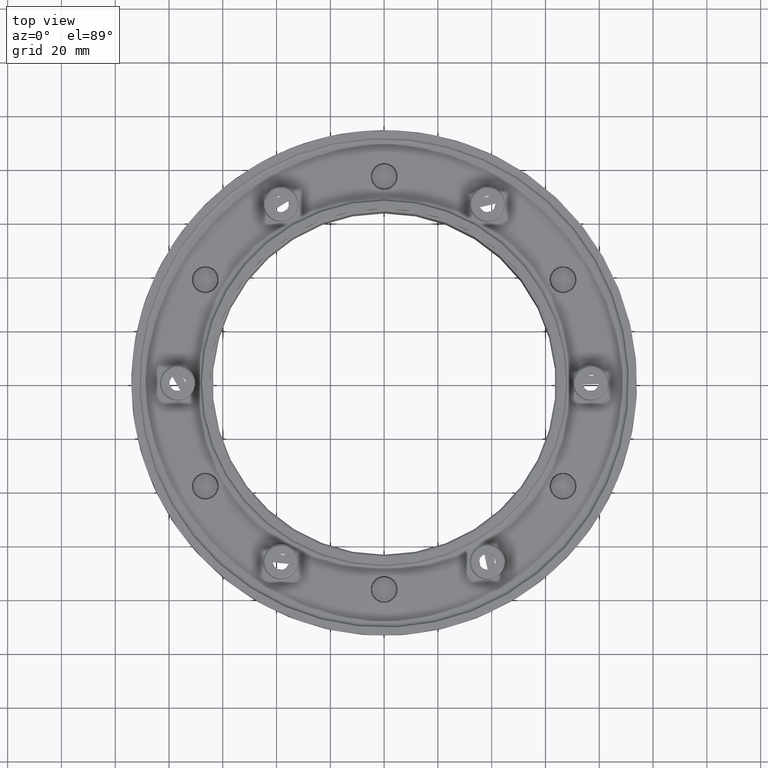
[diagram: clean part render]
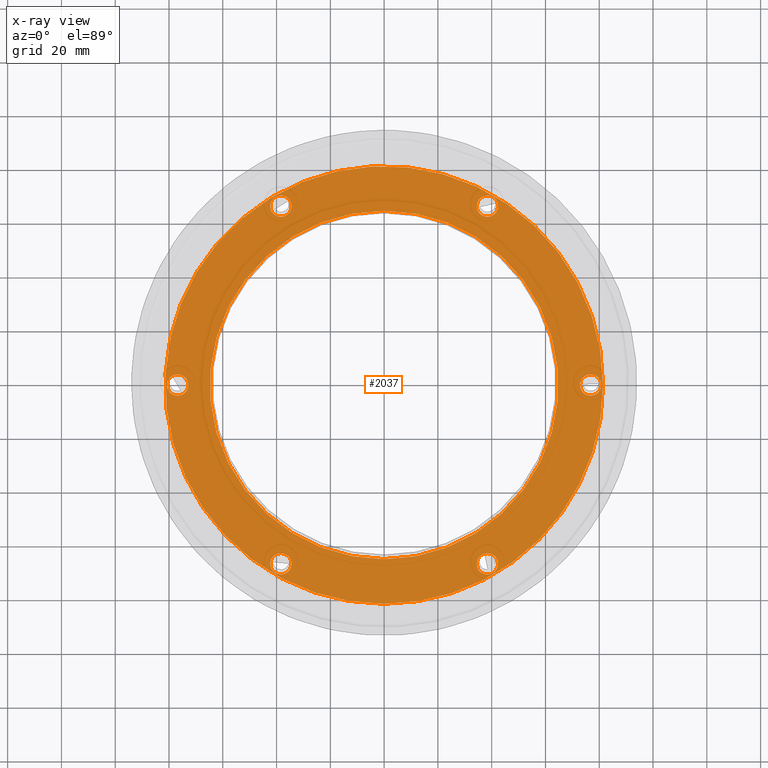
[diagram: x-ray — body ghosted, one internal face saturated and labeled with its STEP entity id]
A machine part, top view, then the same camera in x-ray: the body is ghosted and one INTERNAL B-rep face — a face not visible from any outside direction — is saturated and labeled: STEP entity #2037.
In plain terms, the highlighted planar face has unit normal (-0, 0, -1).
Its self-contained STEP definition (entity closure, byte-faithful):
#74=FACE_BOUND('',#369,.T.);
#75=FACE_BOUND('',#370,.T.);
#76=FACE_BOUND('',#371,.T.);
#77=FACE_BOUND('',#372,.T.);
#78=FACE_BOUND('',#373,.T.);
#79=FACE_BOUND('',#374,.T.);
#80=FACE_BOUND('',#375,.T.);
#141=PLANE('',#2334);
#259=FACE_OUTER_BOUND('',#368,.T.);
#368=EDGE_LOOP('',(#1566,#1567));
#369=EDGE_LOOP('',(#1568));
#370=EDGE_LOOP('',(#1569));
#371=EDGE_LOOP('',(#1570));
#372=EDGE_LOOP('',(#1571));
#373=EDGE_LOOP('',(#1572));
#374=EDGE_LOOP('',(#1573));
#375=EDGE_LOOP('',(#1574,#1575));
#748=CIRCLE('',#2328,81.3873412997318);
#749=CIRCLE('',#2329,81.3873412997318);
#753=CIRCLE('',#2335,3.95);
#754=CIRCLE('',#2336,3.95);
#755=CIRCLE('',#2337,3.95);
#756=CIRCLE('',#2338,3.95);
#757=CIRCLE('',#2339,3.95);
#758=CIRCLE('',#2340,3.95);
#759=CIRCLE('',#2341,64.8);
#760=CIRCLE('',#2342,64.8);
#958=VERTEX_POINT('',#3505);
#959=VERTEX_POINT('',#3507);
#962=VERTEX_POINT('',#3518);
#963=VERTEX_POINT('',#3520);
#964=VERTEX_POINT('',#3522);
#965=VERTEX_POINT('',#3524);
#966=VERTEX_POINT('',#3526);
#967=VERTEX_POINT('',#3528);
#968=VERTEX_POINT('',#3530);
#969=VERTEX_POINT('',#3531);
#1192=EDGE_CURVE('',#958,#959,#748,.T.);
#1193=EDGE_CURVE('',#959,#958,#749,.T.);
#1198=EDGE_CURVE('',#962,#962,#753,.T.);
#1199=EDGE_CURVE('',#963,#963,#754,.T.);
#1200=EDGE_CURVE('',#964,#964,#755,.T.);
#1201=EDGE_CURVE('',#965,#965,#756,.T.);
#1202=EDGE_CURVE('',#966,#966,#757,.T.);
#1203=EDGE_CURVE('',#967,#967,#758,.T.);
#1204=EDGE_CURVE('',#968,#969,#759,.T.);
#1205=EDGE_CURVE('',#969,#968,#760,.T.);
#1566=ORIENTED_EDGE('',*,*,#1193,.F.);
#1567=ORIENTED_EDGE('',*,*,#1192,.F.);
#1568=ORIENTED_EDGE('',*,*,#1198,.T.);
#1569=ORIENTED_EDGE('',*,*,#1199,.T.);
#1570=ORIENTED_EDGE('',*,*,#1200,.T.);
#1571=ORIENTED_EDGE('',*,*,#1201,.T.);
#1572=ORIENTED_EDGE('',*,*,#1202,.T.);
#1573=ORIENTED_EDGE('',*,*,#1203,.T.);
#1574=ORIENTED_EDGE('',*,*,#1204,.F.);
#1575=ORIENTED_EDGE('',*,*,#1205,.F.);
#2037=ADVANCED_FACE('',(#259,#74,#75,#76,#77,#78,#79,#80),#141,.T.);
#2328=AXIS2_PLACEMENT_3D('',#3508,#2783,#2784);
#2329=AXIS2_PLACEMENT_3D('',#3509,#2785,#2786);
#2334=AXIS2_PLACEMENT_3D('',#3517,#2796,#2797);
#2335=AXIS2_PLACEMENT_3D('',#3519,#2798,#2799);
#2336=AXIS2_PLACEMENT_3D('',#3521,#2800,#2801);
#2337=AXIS2_PLACEMENT_3D('',#3523,#2802,#2803);
#2338=AXIS2_PLACEMENT_3D('',#3525,#2804,#2805);
#2339=AXIS2_PLACEMENT_3D('',#3527,#2806,#2807);
#2340=AXIS2_PLACEMENT_3D('',#3529,#2808,#2809);
#2341=AXIS2_PLACEMENT_3D('',#3532,#2810,#2811);
#2342=AXIS2_PLACEMENT_3D('',#3533,#2812,#2813);
#2783=DIRECTION('center_axis',(0.,0.,1.));
#2784=DIRECTION('ref_axis',(0.,1.,0.));
#2785=DIRECTION('center_axis',(0.,0.,1.));
#2786=DIRECTION('ref_axis',(0.,1.,0.));
#2796=DIRECTION('center_axis',(0.,0.,-1.));
#2797=DIRECTION('ref_axis',(-1.,0.,0.));
#2798=DIRECTION('center_axis',(0.,0.,1.));
#2799=DIRECTION('ref_axis',(-1.,0.,0.));
#2800=DIRECTION('center_axis',(0.,0.,1.));
#2801=DIRECTION('ref_axis',(-1.,0.,0.));
#2802=DIRECTION('center_axis',(0.,0.,1.));
#2803=DIRECTION('ref_axis',(-1.,0.,0.));
#2804=DIRECTION('center_axis',(0.,0.,1.));
#2805=DIRECTION('ref_axis',(-1.,0.,0.));
#2806=DIRECTION('center_axis',(0.,0.,1.));
#2807=DIRECTION('ref_axis',(-1.,0.,0.));
#2808=DIRECTION('center_axis',(0.,0.,1.));
#2809=DIRECTION('ref_axis',(-1.,0.,0.));
#2810=DIRECTION('center_axis',(0.,0.,-1.));
#2811=DIRECTION('ref_axis',(-1.,0.,0.));
#2812=DIRECTION('center_axis',(0.,0.,-1.));
#2813=DIRECTION('ref_axis',(-1.,0.,0.));
#3505=CARTESIAN_POINT('',(-81.3873412997318,-9.96707470138298E-15,0.));
#3507=CARTESIAN_POINT('',(9.96707470138298E-15,-81.3873412997318,0.));
#3508=CARTESIAN_POINT('Origin',(0.,0.,0.));
#3509=CARTESIAN_POINT('Origin',(0.,0.,0.));
#3517=CARTESIAN_POINT('Origin',(-5.55111512312578E-16,5.55111512312578E-16,
0.));
#3518=CARTESIAN_POINT('',(-62.5607510106449,38.3999999999999,0.));
#3519=CARTESIAN_POINT('Origin',(-66.5107510106449,38.3999999999999,0.));
#3520=CARTESIAN_POINT('',(-62.5607510106448,-38.4000000000001,0.));
#3521=CARTESIAN_POINT('Origin',(-66.5107510106448,-38.4000000000001,0.));
#3522=CARTESIAN_POINT('',(3.95000000000007,-76.8,0.));
#3523=CARTESIAN_POINT('Origin',(6.82121026329696E-14,-76.8,0.));
#3524=CARTESIAN_POINT('',(70.4607510106449,-38.3999999999999,0.));
#3525=CARTESIAN_POINT('Origin',(66.5107510106449,-38.3999999999999,0.));
#3526=CARTESIAN_POINT('',(70.4607510106449,38.4,0.));
#3527=CARTESIAN_POINT('Origin',(66.5107510106449,38.4,0.));
#3528=CARTESIAN_POINT('',(3.95,76.8,0.));
#3529=CARTESIAN_POINT('Origin',(0.,76.8,0.));
#3530=CARTESIAN_POINT('',(64.8,-7.38059974616227E-15,0.));
#3531=CARTESIAN_POINT('',(-64.8,-7.38059974616227E-15,0.));
#3532=CARTESIAN_POINT('Origin',(-5.55111512312578E-16,5.55111512312578E-16,
0.));
#3533=CARTESIAN_POINT('Origin',(-5.55111512312578E-16,5.55111512312578E-16,
0.));